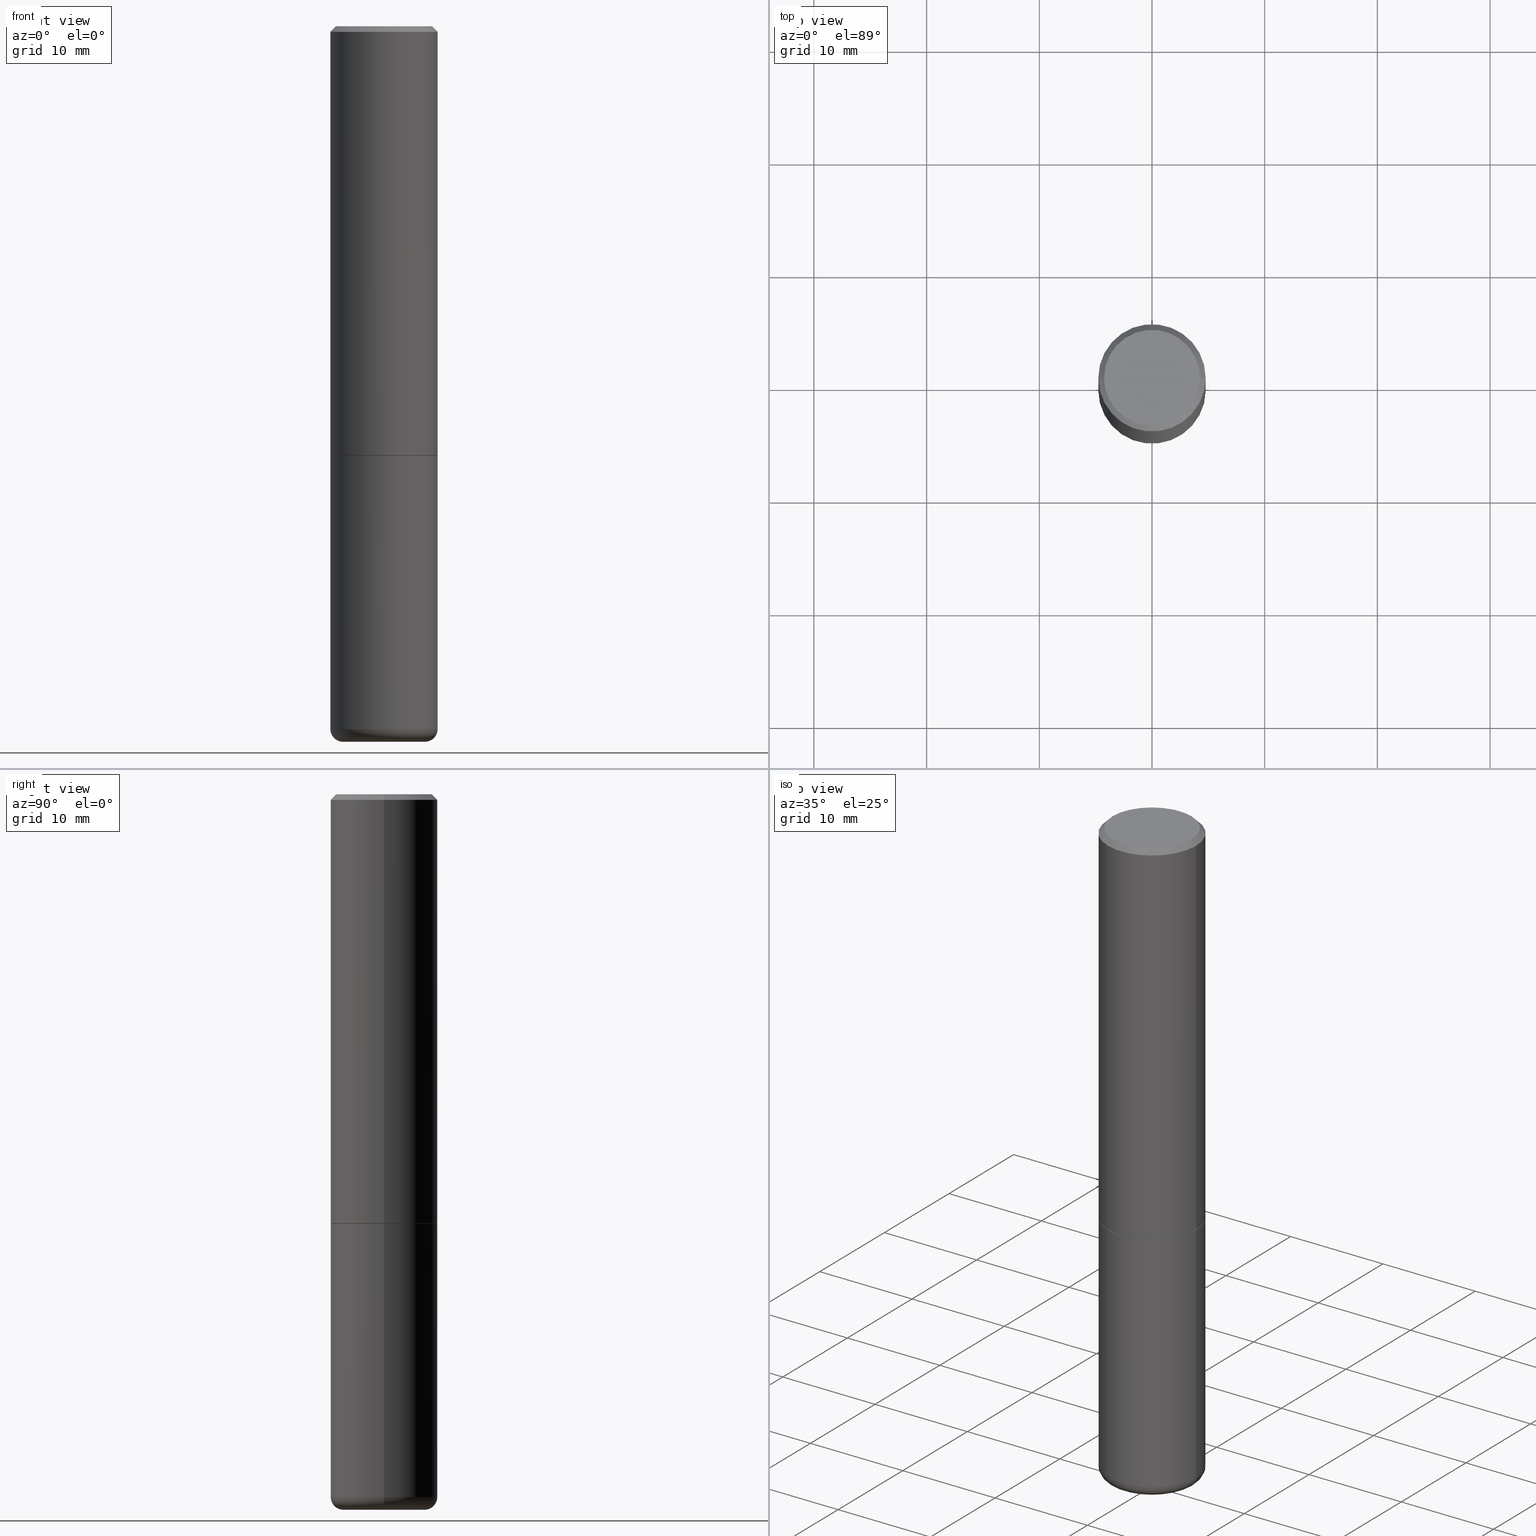
[diagram: canonical four-view strip — front | top / right | iso, engineering-drawing reading convention]
A machine part, canonical four-view strip (front | top / right | iso — engineering-drawing reading convention). The complete STEP part file that produces these views, byte-faithful:
ISO-10303-21;
HEADER;
FILE_DESCRIPTION (( 'STEP AP203' ),
    '1' );
FILE_NAME ('38173.STEP',
    '2023-03-22T20:28:51',
    ( '' ),
    ( '' ),
    'SwSTEP 2.0',
    'SolidWorks 2022',
    '' );
FILE_SCHEMA (( 'CONFIG_CONTROL_DESIGN' ));
ENDSEC;

DATA;
#1 = DIRECTION ( 'NONE',  ( -1.000000000000000000, 7.105427357600993970E-15, 0.000000000000000000 ) ) ;
#2 = ORIENTED_EDGE ( 'NONE', *, *, #335, .F. ) ;
#3 = CC_DESIGN_PERSON_AND_ORGANIZATION_ASSIGNMENT ( #252, #396, ( #260 ) ) ;
#4 = DATE_TIME_ROLE ( 'classification_date' ) ;
#5 = CARTESIAN_POINT ( 'NONE',  ( -0.1875000000000000278, -5.572244379473308339E-15, -1.500000000000000222 ) ) ;
#6 = ORIENTED_EDGE ( 'NONE', *, *, #272, .F. ) ;
#7 = APPROVAL_DATE_TIME ( #69, #218 ) ;
#8 = EDGE_CURVE ( 'NONE', #34, #312, #78, .T. ) ;
#9 = ORIENTED_EDGE ( 'NONE', *, *, #114, .F. ) ;
#10 = CARTESIAN_POINT ( 'NONE',  ( 0.1425000000000000433, -9.566874191352565154E-15, -2.455061670936044660 ) ) ;
#11 = VECTOR ( 'NONE', #253, 39.37007874015748143 ) ;
#12 = CARTESIAN_POINT ( 'NONE',  ( -0.1874999999999998890, 1.332267629550187060E-15, -9.223003294227942385E-30 ) ) ;
#13 = CC_DESIGN_PERSON_AND_ORGANIZATION_ASSIGNMENT ( #359, #61, ( #388 ) ) ;
#14 = CARTESIAN_POINT ( 'NONE',  ( -0.1874999999999998057, 1.239475875289310527E-15, -0.02000000000000003164 ) ) ;
#15 = DIRECTION ( 'NONE',  ( 2.445468806185136597E-29, -3.491481338843145583E-15, -1.000000000000000000 ) ) ;
#16 = COORDINATED_UNIVERSAL_TIME_OFFSET ( 5, 0, .BEHIND. ) ;
#17 = DIRECTION ( 'NONE',  ( 2.445468806185136597E-29, -3.491481338843145583E-15, -1.000000000000000000 ) ) ;
#18 = VECTOR ( 'NONE', #322, 39.37007874015748143 ) ;
#19 = AXIS2_PLACEMENT_3D ( 'NONE', #331, #108, #333 ) ;
#20 = CARTESIAN_POINT ( 'NONE',  ( 3.668203209277706016E-29, -5.237222008264719754E-15, -1.500000000000000444 ) ) ;
#21 = PRODUCT_DEFINITION_SHAPE ( 'NONE', 'NONE',  #372 ) ;
#22 = CARTESIAN_POINT ( 'NONE',  ( -0.1874999999999997502, -5.572244379473309128E-15, -2.455061670936044660 ) ) ;
#23 = LINE ( 'NONE', #12, #230 ) ;
#24 = DIRECTION ( 'NONE',  ( -1.000000000000000000, 6.982962677686266711E-15, 0.000000000000000000 ) ) ;
#25 = LINE ( 'NONE', #426, #254 ) ;
#26 = CYLINDRICAL_SURFACE ( 'NONE', #326, 0.1874999999999999167 ) ;
#27 = CIRCLE ( 'NONE', #183, 0.04499999999999970690 ) ;
#28 =( NAMED_UNIT ( * ) PLANE_ANGLE_UNIT ( ) SI_UNIT ( $, .RADIAN. ) );
#29 = CARTESIAN_POINT ( 'NONE',  ( -0.1874999999999999722, -1.319512447301180399E-15, -1.499000000000000110 ) ) ;
#30 = CARTESIAN_POINT ( 'NONE',  ( 0.000000000000000000, 0.000000000000000000, 0.000000000000000000 ) ) ;
#31 = MANIFOLD_SOLID_BREP ( 'Body-Move/Copy2[2]', #104 ) ;
#32 = AXIS2_PLACEMENT_3D ( 'NONE', #383, #124, #88 ) ;
#33 = ORIENTED_EDGE ( 'NONE', *, *, #215, .F. ) ;
#34 = VERTEX_POINT ( 'NONE', #149 ) ;
#35 = CYLINDRICAL_SURFACE ( 'NONE', #191, 0.1874999999999998890 ) ;
#36 = VERTEX_POINT ( 'NONE', #344 ) ;
#37 = ORIENTED_EDGE ( 'NONE', *, *, #215, .T. ) ;
#38 = AXIS2_PLACEMENT_3D ( 'NONE', #55, #222, #250 ) ;
#39 = LOCAL_TIME ( 16, 28, 51.00000000000000000, #273 ) ;
#40 = EDGE_LOOP ( 'NONE', ( #301, #304 ) ) ;
#41 = VERTEX_POINT ( 'NONE', #175 ) ;
#42 = CARTESIAN_POINT ( 'NONE',  ( -0.1425000000000000433, -7.559278611324128563E-15, -2.455061670936044660 ) ) ;
#43 = VERTEX_POINT ( 'NONE', #5 ) ;
#44 = ORIENTED_EDGE ( 'NONE', *, *, #436, .F. ) ;
#45 = CARTESIAN_POINT ( 'NONE',  ( 3.668203209277706016E-29, -5.237222008264719754E-15, -1.500000000000000444 ) ) ;
#46 = DIRECTION ( 'NONE',  ( -2.445468806185136597E-29, 3.491481338843145583E-15, 1.000000000000000000 ) ) ;
#47 = ADVANCED_FACE ( 'NONE', ( #275 ), #429, .T. ) ;
#48 = PERSON_AND_ORGANIZATION ( #178, #299 ) ;
#49 = AXIS2_PLACEMENT_3D ( 'NONE', #54, #187, #24 ) ;
#50 = EDGE_CURVE ( 'NONE', #303, #342, #356, .T. ) ;
#51 = APPROVAL_PERSON_ORGANIZATION ( #427, #424, #223 ) ;
#52 = DIRECTION ( 'NONE',  ( -1.000000000000000000, 6.982962677686265922E-15, -4.876176775795935793E-29 ) ) ;
#53 = ORIENTED_EDGE ( 'NONE', *, *, #95, .F. ) ;
#54 = CARTESIAN_POINT ( 'NONE',  ( 4.890937612370280165E-31, -6.982962677686301470E-17, -0.02000000000000003164 ) ) ;
#55 = CARTESIAN_POINT ( 'NONE',  ( 3.668203209277706016E-29, -5.237222008264719754E-15, -1.500000000000000444 ) ) ;
#56 = AXIS2_PLACEMENT_3D ( 'NONE', #267, #83, #408 ) ;
#57 =( GEOMETRIC_REPRESENTATION_CONTEXT ( 3 ) GLOBAL_UNCERTAINTY_ASSIGNED_CONTEXT ( ( #300 ) ) GLOBAL_UNIT_ASSIGNED_CONTEXT ( ( #259, #28, #365 ) ) REPRESENTATION_CONTEXT ( 'NONE', 'WORKASPACE' ) );
#58 = LINE ( 'NONE', #14, #18 ) ;
#59 = ADVANCED_FACE ( 'NONE', ( #284 ), #323, .F. ) ;
#60 = EDGE_CURVE ( 'NONE', #146, #440, #140, .T. ) ;
#61 = PERSON_AND_ORGANIZATION_ROLE ( 'design_owner' ) ;
#62 = PRODUCT_RELATED_PRODUCT_CATEGORY ( 'detail', '', ( #388 ) ) ;
#63 = DIRECTION ( 'NONE',  ( 1.000000000000000000, -6.982962677686266711E-15, 0.000000000000000000 ) ) ;
#64 = EDGE_CURVE ( 'NONE', #85, #440, #287, .T. ) ;
#65 = APPROVAL ( #378, 'UNSPECIFIED' ) ;
#66 = CIRCLE ( 'NONE', #435, 0.1864999999999999714 ) ;
#67 = AXIS2_PLACEMENT_3D ( 'NONE', #186, #320, #156 ) ;
#68 = CC_DESIGN_APPROVAL ( #65, ( #372 ) ) ;
#69 = DATE_AND_TIME ( #207, #39 ) ;
#70 = ORIENTED_EDGE ( 'NONE', *, *, #158, .T. ) ;
#71 = FACE_OUTER_BOUND ( 'NONE', #210, .T. ) ;
#72 = VERTEX_POINT ( 'NONE', #328 ) ;
#73 = EDGE_LOOP ( 'NONE', ( #79, #205, #345, #2 ) ) ;
#74 = APPROVAL_ROLE ( '' ) ;
#75 = ADVANCED_FACE ( 'NONE', ( #251 ), #305, .F. ) ;
#76 = DIRECTION ( 'NONE',  ( 7.105427357601001859E-15, 1.000000000000000000, -3.491481338843145583E-15 ) ) ;
#77 = ORIENTED_EDGE ( 'NONE', *, *, #60, .T. ) ;
#78 = CIRCLE ( 'NONE', #324, 0.1674999999999998157 ) ;
#79 = ORIENTED_EDGE ( 'NONE', *, *, #143, .T. ) ;
#80 = AXIS2_PLACEMENT_3D ( 'NONE', #316, #352, #281 ) ;
#81 = VECTOR ( 'NONE', #263, 39.37007874015748143 ) ;
#82 = DATE_AND_TIME ( #384, #420 ) ;
#83 = DIRECTION ( 'NONE',  ( -2.445468806185136597E-29, 3.491481338843145583E-15, 1.000000000000000000 ) ) ;
#84 = ORIENTED_EDGE ( 'NONE', *, *, #239, .T. ) ;
#85 = VERTEX_POINT ( 'NONE', #129 ) ;
#86 = FACE_OUTER_BOUND ( 'NONE', #151, .T. ) ;
#87 = EDGE_CURVE ( 'NONE', #34, #41, #58, .T. ) ;
#88 = DIRECTION ( 'NONE',  ( 1.000000000000000000, -6.982962677686269077E-15, 0.000000000000000000 ) ) ;
#89 = DIRECTION ( 'NONE',  ( -2.445468806185136597E-29, 3.491481338843145583E-15, 1.000000000000000000 ) ) ;
#90 = DIRECTION ( 'NONE',  ( 1.000000000000000000, -6.982962677686269077E-15, 0.000000000000000000 ) ) ;
#91 = DIRECTION ( 'NONE',  ( -2.445468806185136597E-29, 3.491481338843145583E-15, 1.000000000000000000 ) ) ;
#92 = AXIS2_PLACEMENT_3D ( 'NONE', #148, #270, #410 ) ;
#93 = CARTESIAN_POINT ( 'NONE',  ( 6.113672015462842613E-29, -8.728703347107864943E-15, -2.500000000000000000 ) ) ;
#94 = DIRECTION ( 'NONE',  ( -2.445468806185136597E-29, 3.491481338843145583E-15, 1.000000000000000000 ) ) ;
#95 = EDGE_CURVE ( 'NONE', #85, #308, #234, .T. ) ;
#96 = FACE_OUTER_BOUND ( 'NONE', #382, .T. ) ;
#97 = DIRECTION ( 'NONE',  ( -2.445468806185136597E-29, 3.491481338843145583E-15, 1.000000000000000000 ) ) ;
#98 = CIRCLE ( 'NONE', #154, 0.1874999999999998057 ) ;
#99 = DIRECTION ( 'NONE',  ( -2.445468806185136597E-29, 3.491481338843145583E-15, 1.000000000000000000 ) ) ;
#100 = EDGE_CURVE ( 'NONE', #243, #43, #23, .T. ) ;
#101 = CYLINDRICAL_SURFACE ( 'NONE', #220, 0.1874999999999999167 ) ;
#102 = SECURITY_CLASSIFICATION_LEVEL ( 'unclassified' ) ;
#103 = ADVANCED_FACE ( 'NONE', ( #96 ), #119, .T. ) ;
#104 = CLOSED_SHELL ( 'NONE', ( #394, #199, #367, #162, #325, #135, #109, #137 ) ) ;
#105 = CARTESIAN_POINT ( 'NONE',  ( -0.1874999999999999167, 1.332267629550187257E-15, -9.223003294227943787E-30 ) ) ;
#106 = AXIS2_PLACEMENT_3D ( 'NONE', #192, #421, #52 ) ;
#107 = AXIS2_PLACEMENT_3D ( 'NONE', #348, #46, #185 ) ;
#108 = DIRECTION ( 'NONE',  ( -2.445468806185136597E-29, 3.491481338843145583E-15, 1.000000000000000000 ) ) ;
#109 = ADVANCED_FACE ( 'NONE', ( #227 ), #288, .F. ) ;
#110 = AXIS2_PLACEMENT_3D ( 'NONE', #442, #409, #201 ) ;
#111 = ORIENTED_EDGE ( 'NONE', *, *, #169, .T. ) ;
#112 = LINE ( 'NONE', #274, #240 ) ;
#113 = ORIENTED_EDGE ( 'NONE', *, *, #436, .T. ) ;
#114 = EDGE_CURVE ( 'NONE', #312, #36, #224, .T. ) ;
#115 = ORIENTED_EDGE ( 'NONE', *, *, #8, .F. ) ;
#116 = EDGE_LOOP ( 'NONE', ( #208, #264, #6, #403 ) ) ;
#117 = EDGE_LOOP ( 'NONE', ( #170, #113 ) ) ;
#118 = EDGE_LOOP ( 'NONE', ( #77, #111, #122, #241 ) ) ;
#119 = TOROIDAL_SURFACE ( 'NONE', #277, 0.1425000000000000433, 0.04499999999999970690 ) ;
#120 = APPROVAL_PERSON_ORGANIZATION ( #48, #65, #319 ) ;
#121 = ORIENTED_EDGE ( 'NONE', *, *, #169, .F. ) ;
#122 = ORIENTED_EDGE ( 'NONE', *, *, #206, .F. ) ;
#123 = DIRECTION ( 'NONE',  ( 1.000000000000000000, -6.982962677686269077E-15, 0.000000000000000000 ) ) ;
#124 = DIRECTION ( 'NONE',  ( -2.445468806185136597E-29, 3.491481338843145583E-15, 1.000000000000000000 ) ) ;
#125 = DIRECTION ( 'NONE',  ( 1.000000000000000000, -6.982962677686264344E-15, 0.000000000000000000 ) ) ;
#126 = ORIENTED_EDGE ( 'NONE', *, *, #64, .F. ) ;
#127 = PERSON_AND_ORGANIZATION_ROLE ( 'creator' ) ;
#128 = APPROVAL_PERSON_ORGANIZATION ( #269, #218, #74 ) ;
#129 = CARTESIAN_POINT ( 'NONE',  ( -0.1864999999999999714, -3.906761351723910512E-15, -1.500000000000000444 ) ) ;
#130 = CARTESIAN_POINT ( 'NONE',  ( -0.1864999999999999714, -3.912059806072132914E-15, -1.500000000000000444 ) ) ;
#131 = CARTESIAN_POINT ( 'NONE',  ( 3.668203209277704895E-29, -5.237222008264718177E-15, -1.500000000000000222 ) ) ;
#132 = CARTESIAN_POINT ( 'NONE',  ( 3.668203209277706016E-29, -5.237222008264719754E-15, -1.500000000000000444 ) ) ;
#133 = DATE_AND_TIME ( #283, #386 ) ;
#134 = CONICAL_SURFACE ( 'NONE', #190, 0.1864999999999999714, 0.7853981633972946241 ) ;
#135 = ADVANCED_FACE ( 'NONE', ( #86 ), #134, .T. ) ;
#136 = CC_DESIGN_APPROVAL ( #424, ( #260 ) ) ;
#137 = ADVANCED_FACE ( 'NONE', ( #354 ), #416, .F. ) ;
#138 = CARTESIAN_POINT ( 'NONE',  ( 0.1864999999999999714, -6.539544547653208748E-15, -1.500000000000000444 ) ) ;
#139 = CARTESIAN_POINT ( 'NONE',  ( 6.003776733534855624E-29, -8.571802009782271832E-15, -2.455061670936044660 ) ) ;
#140 = CIRCLE ( 'NONE', #67, 0.1875000000000000278 ) ;
#141 = DIRECTION ( 'NONE',  ( -2.445468806185136597E-29, 3.491481338843145583E-15, 1.000000000000000000 ) ) ;
#142 = EDGE_LOOP ( 'NONE', ( #121, #381, #278, #374 ) ) ;
#143 = EDGE_CURVE ( 'NONE', #308, #85, #66, .T. ) ;
#144 = CONICAL_SURFACE ( 'NONE', #385, 751.2258538476709191, 1.518436449235073926 ) ;
#145 = ORIENTED_EDGE ( 'NONE', *, *, #143, .F. ) ;
#146 = VERTEX_POINT ( 'NONE', #245 ) ;
#147 = DATE_AND_TIME ( #235, #357 ) ;
#148 = CARTESIAN_POINT ( 'NONE',  ( 4.890937612370280165E-31, -6.982962677686301470E-17, -0.02000000000000003164 ) ) ;
#149 = CARTESIAN_POINT ( 'NONE',  ( -0.1674999999999998157, 1.204561061900879272E-15, -8.301862719484101980E-30 ) ) ;
#150 = ORIENTED_EDGE ( 'NONE', *, *, #272, .T. ) ;
#151 = EDGE_LOOP ( 'NONE', ( #126, #176, #307, #265 ) ) ;
#152 = CC_DESIGN_PERSON_AND_ORGANIZATION_ASSIGNMENT ( #329, #127, ( #372 ) ) ;
#153 = ORIENTED_EDGE ( 'NONE', *, *, #100, .T. ) ;
#154 = AXIS2_PLACEMENT_3D ( 'NONE', #226, #349, #266 ) ;
#155 = DIRECTION ( 'NONE',  ( -2.445468806185136597E-29, 3.491481338843145583E-15, 1.000000000000000000 ) ) ;
#156 = DIRECTION ( 'NONE',  ( 1.000000000000000000, -6.982962677686266711E-15, 0.000000000000000000 ) ) ;
#157 = DIRECTION ( 'NONE',  ( -1.000000000000000000, 6.982962677686265922E-15, 0.000000000000000000 ) ) ;
#158 = EDGE_CURVE ( 'NONE', #342, #303, #163, .T. ) ;
#159 = DIRECTION ( 'NONE',  ( 0.000000000000000000, 0.000000000000000000, 1.000000000000000000 ) ) ;
#160 = DIRECTION ( 'NONE',  ( -2.445468806185136597E-29, 3.491481338843145583E-15, 1.000000000000000000 ) ) ;
#161 = DIRECTION ( 'NONE',  ( 1.000000000000000000, -6.982962677686264344E-15, 0.000000000000000000 ) ) ;
#162 = ADVANCED_FACE ( 'NONE', ( #387 ), #336, .T. ) ;
#163 = CIRCLE ( 'NONE', #166, 0.1401448819690678804 ) ;
#164 = APPROVAL_DATE_TIME ( #133, #424 ) ;
#165 = EDGE_CURVE ( 'NONE', #243, #72, #405, .T. ) ;
#166 = AXIS2_PLACEMENT_3D ( 'NONE', #219, #248, #125 ) ;
#167 = CC_DESIGN_APPROVAL ( #218, ( #327 ) ) ;
#168 = ORIENTED_EDGE ( 'NONE', *, *, #158, .F. ) ;
#169 = EDGE_CURVE ( 'NONE', #440, #41, #200, .T. ) ;
#170 = ORIENTED_EDGE ( 'NONE', *, *, #256, .T. ) ;
#171 = ORIENTED_EDGE ( 'NONE', *, *, #433, .F. ) ;
#172 = DIRECTION ( 'NONE',  ( 1.000000000000000000, -6.982962677686265922E-15, 4.876176775795935793E-29 ) ) ;
#173 = AXIS2_PLACEMENT_3D ( 'NONE', #228, #99, #290 ) ;
#174 = EDGE_LOOP ( 'NONE', ( #9, #115, #289, #414 ) ) ;
#175 = CARTESIAN_POINT ( 'NONE',  ( -0.1874999999999998057, 1.239475875289310527E-15, -0.02000000000000003164 ) ) ;
#176 = ORIENTED_EDGE ( 'NONE', *, *, #95, .T. ) ;
#177 = PERSON_AND_ORGANIZATION_ROLE ( 'classification_officer' ) ;
#178 = PERSON ( 'UNSPECIFIED', 'UNSPECIFIED', 'UNSPECIFIED', ('UNSPECIFIED'), ('UNSPECIFIED'), ('UNSPECIFIED') ) ;
#179 = ORIENTED_EDGE ( 'NONE', *, *, #256, .F. ) ;
#180 = VERTEX_POINT ( 'NONE', #361 ) ;
#181 = CARTESIAN_POINT ( 'NONE',  ( 0.000000000000000000, 0.000000000000000000, 0.000000000000000000 ) ) ;
#182 = DIRECTION ( 'NONE',  ( -0.7071067811864388819, 7.493145998869961307E-15, 0.7071067811866561525 ) ) ;
#183 = AXIS2_PLACEMENT_3D ( 'NONE', #42, #76, #1 ) ;
#184 = ORIENTED_EDGE ( 'NONE', *, *, #50, .F. ) ;
#185 = DIRECTION ( 'NONE',  ( 1.000000000000000000, -6.982962677686266711E-15, 0.000000000000000000 ) ) ;
#186 = CARTESIAN_POINT ( 'NONE',  ( 3.665757740471519853E-29, -5.233730526925875958E-15, -1.499000000000000110 ) ) ;
#187 = DIRECTION ( 'NONE',  ( 2.445468806185136597E-29, -3.491481338843145583E-15, -1.000000000000000000 ) ) ;
#188 = CARTESIAN_POINT ( 'NONE',  ( 0.1874999999999998057, -1.356173001359023888E-15, -0.02000000000000003164 ) ) ;
#189 = ADVANCED_BREP_SHAPE_REPRESENTATION ( '38173', ( #315, #31, #407 ), #57 ) ;
#190 = AXIS2_PLACEMENT_3D ( 'NONE', #45, #155, #90 ) ;
#191 = AXIS2_PLACEMENT_3D ( 'NONE', #181, #91, #314 ) ;
#192 = CARTESIAN_POINT ( 'NONE',  ( 1.309305502066211690E-15, 0.1874999999999947820, -1.500000000000000666 ) ) ;
#193 = PERSON_AND_ORGANIZATION ( #178, #299 ) ;
#194 = APPLICATION_PROTOCOL_DEFINITION ( 'international standard', 'config_control_design', 1994, #377 ) ;
#195 = PERSON_AND_ORGANIZATION_ROLE ( 'design_supplier' ) ;
#196 = CARTESIAN_POINT ( 'NONE',  ( 6.003776733534855624E-29, -8.571802009782271832E-15, -2.455061670936044660 ) ) ;
#197 = APPROVAL_DATE_TIME ( #82, #65 ) ;
#198 = AXIS2_PLACEMENT_3D ( 'NONE', #392, #17, #157 ) ;
#199 = ADVANCED_FACE ( 'NONE', ( #366 ), #26, .T. ) ;
#200 = LINE ( 'NONE', #105, #298 ) ;
#201 = DIRECTION ( 'NONE',  ( 1.000000000000000000, -6.982962677686266711E-15, 4.876176775795936914E-29 ) ) ;
#202 = CC_DESIGN_DATE_AND_TIME_ASSIGNMENT ( #147, #4, ( #327 ) ) ;
#203 = AXIS2_PLACEMENT_3D ( 'NONE', #196, #97, #430 ) ;
#204 = FACE_OUTER_BOUND ( 'NONE', #313, .T. ) ;
#205 = ORIENTED_EDGE ( 'NONE', *, *, #64, .T. ) ;
#206 = EDGE_CURVE ( 'NONE', #36, #41, #98, .T. ) ;
#207 = CALENDAR_DATE ( 2023, 22, 3 ) ;
#208 = ORIENTED_EDGE ( 'NONE', *, *, #50, .T. ) ;
#209 = CARTESIAN_POINT ( 'NONE',  ( 1.023740102807458112E-27, -1.461629547568640162E-13, -41.86273405811559911 ) ) ;
#210 = EDGE_LOOP ( 'NONE', ( #150, #153, #179, #310 ) ) ;
#211 = SHAPE_DEFINITION_REPRESENTATION ( #21, #189 ) ;
#212 = ORIENTED_EDGE ( 'NONE', *, *, #100, .F. ) ;
#213 = CIRCLE ( 'NONE', #232, 0.04499999999999970690 ) ;
#214 = EDGE_LOOP ( 'NONE', ( #145, #53 ) ) ;
#215 = EDGE_CURVE ( 'NONE', #437, #342, #406, .T. ) ;
#216 = ORIENTED_EDGE ( 'NONE', *, *, #165, .F. ) ;
#217 = DIRECTION ( 'NONE',  ( -2.445468806185136597E-29, 3.491481338843145583E-15, 1.000000000000000000 ) ) ;
#218 = APPROVAL ( #375, 'UNSPECIFIED' ) ;
#219 = CARTESIAN_POINT ( 'NONE',  ( 6.113672015462842613E-29, -8.728703347107864943E-15, -2.500000000000000000 ) ) ;
#220 = AXIS2_PLACEMENT_3D ( 'NONE', #363, #141, #172 ) ;
#221 = LOCAL_TIME ( 16, 28, 51.00000000000000000, #422 ) ;
#222 = DIRECTION ( 'NONE',  ( -2.445468806185136597E-29, 3.491481338843145583E-15, 1.000000000000000000 ) ) ;
#223 = APPROVAL_ROLE ( '' ) ;
#224 = LINE ( 'NONE', #188, #11 ) ;
#225 = DIRECTION ( 'NONE',  ( 1.000000000000000000, 0.000000000000000000, 0.000000000000000000 ) ) ;
#226 = CARTESIAN_POINT ( 'NONE',  ( 4.890937612370280165E-31, -6.982962677686301470E-17, -0.02000000000000003164 ) ) ;
#227 = FACE_OUTER_BOUND ( 'NONE', #214, .T. ) ;
#228 = CARTESIAN_POINT ( 'NONE',  ( 3.665757740471519853E-29, -5.233730526925875958E-15, -1.499000000000000110 ) ) ;
#229 = CALENDAR_DATE ( 2023, 22, 3 ) ;
#230 = VECTOR ( 'NONE', #282, 39.37007874015748143 ) ;
#231 = DIRECTION ( 'NONE',  ( -2.445468806185136877E-29, 3.491481338843145188E-15, 1.000000000000000000 ) ) ;
#232 = AXIS2_PLACEMENT_3D ( 'NONE', #10, #279, #415 ) ;
#233 = EDGE_CURVE ( 'NONE', #312, #34, #400, .T. ) ;
#234 = CIRCLE ( 'NONE', #38, 0.1864999999999999714 ) ;
#235 = CALENDAR_DATE ( 2023, 22, 3 ) ;
#236 = LENGTH_MEASURE_WITH_UNIT ( LENGTH_MEASURE( 0.02539999999999999897 ), #434 );
#237 = DIRECTION ( 'NONE',  ( 0.7071067811864388819, -2.468850131081119129E-15, 0.7071067811866561525 ) ) ;
#238 = ORIENTED_EDGE ( 'NONE', *, *, #404, .T. ) ;
#239 = EDGE_CURVE ( 'NONE', #72, #180, #297, .T. ) ;
#240 = VECTOR ( 'NONE', #237, 39.37007874015748143 ) ;
#241 = ORIENTED_EDGE ( 'NONE', *, *, #296, .F. ) ;
#242 = DIMENSIONAL_EXPONENTS ( 1.000000000000000000, 0.000000000000000000, 0.000000000000000000, 0.000000000000000000, 0.000000000000000000, 0.000000000000000000, 0.000000000000000000 ) ;
#243 = VERTEX_POINT ( 'NONE', #22 ) ;
#244 = FACE_OUTER_BOUND ( 'NONE', #73, .T. ) ;
#245 = CARTESIAN_POINT ( 'NONE',  ( 0.1875000000000000278, -6.543036028992050967E-15, -1.499000000000000110 ) ) ;
#246 = DIRECTION ( 'NONE',  ( -1.000000000000000000, 6.982962677686265922E-15, 0.000000000000000000 ) ) ;
#247 = COORDINATED_UNIVERSAL_TIME_OFFSET ( 5, 0, .BEHIND. ) ;
#248 = DIRECTION ( 'NONE',  ( -2.445468806185136597E-29, 3.491481338843145583E-15, 1.000000000000000000 ) ) ;
#249 = CIRCLE ( 'NONE', #173, 0.1875000000000000278 ) ;
#250 = DIRECTION ( 'NONE',  ( 1.000000000000000000, -6.982962677686269077E-15, 0.000000000000000000 ) ) ;
#251 = FACE_OUTER_BOUND ( 'NONE', #411, .T. ) ;
#252 = PERSON_AND_ORGANIZATION ( #178, #299 ) ;
#253 = DIRECTION ( 'NONE',  ( 0.7071067811865469066, -7.319954787623254468E-15, -0.7071067811865482389 ) ) ;
#254 = VECTOR ( 'NONE', #360, 39.37007874015748143 ) ;
#255 = CARTESIAN_POINT ( 'NONE',  ( 0.1674999999999998157, -1.252653207992877105E-15, 8.469775550109232378E-30 ) ) ;
#256 = EDGE_CURVE ( 'NONE', #180, #43, #379, .T. ) ;
#257 = CLOSED_SHELL ( 'NONE', ( #389, #47, #334, #59, #402, #103, #75 ) ) ;
#258 = AXIS2_PLACEMENT_3D ( 'NONE', #132, #425, #391 ) ;
#259 =( CONVERSION_BASED_UNIT ( 'INCH', #236 ) LENGTH_UNIT ( ) NAMED_UNIT ( #242 ) );
#260 = PRODUCT_DEFINITION_FORMATION_WITH_SPECIFIED_SOURCE ( 'ANY', '', #388, .NOT_KNOWN. ) ;
#261 = CARTESIAN_POINT ( 'NONE',  ( 8.110391114063191484E-19, -8.703059526818897836E-15, -2.492655317958118566 ) ) ;
#262 = CC_DESIGN_DATE_AND_TIME_ASSIGNMENT ( #358, #291, ( #372 ) ) ;
#263 = DIRECTION ( 'NONE',  ( 0.9986295347545742773, -7.033825938271997912E-15, -0.05233595624293664594 ) ) ;
#264 = ORIENTED_EDGE ( 'NONE', *, *, #353, .T. ) ;
#265 = ORIENTED_EDGE ( 'NONE', *, *, #280, .F. ) ;
#266 = DIRECTION ( 'NONE',  ( 1.000000000000000000, -6.982962677686266711E-15, 0.000000000000000000 ) ) ;
#267 = CARTESIAN_POINT ( 'NONE',  ( 0.000000000000000000, 0.000000000000000000, 0.000000000000000000 ) ) ;
#268 = DIRECTION ( 'NONE',  ( -2.445468806185136597E-29, 3.491481338843145583E-15, 1.000000000000000000 ) ) ;
#269 = PERSON_AND_ORGANIZATION ( #178, #299 ) ;
#270 = DIRECTION ( 'NONE',  ( 2.445468806185136597E-29, -3.491481338843145583E-15, -1.000000000000000000 ) ) ;
#271 = ORIENTED_EDGE ( 'NONE', *, *, #206, .T. ) ;
#272 = EDGE_CURVE ( 'NONE', #72, #243, #364, .T. ) ;
#273 = COORDINATED_UNIVERSAL_TIME_OFFSET ( 5, 0, .BEHIND. ) ;
#274 = CARTESIAN_POINT ( 'NONE',  ( 0.1864999999999999714, -6.539544547653208748E-15, -1.500000000000000444 ) ) ;
#275 = FACE_OUTER_BOUND ( 'NONE', #116, .T. ) ;
#276 = EDGE_LOOP ( 'NONE', ( #212, #370, #84, #44 ) ) ;
#277 = AXIS2_PLACEMENT_3D ( 'NONE', #347, #94, #355 ) ;
#278 = ORIENTED_EDGE ( 'NONE', *, *, #296, .T. ) ;
#279 = DIRECTION ( 'NONE',  ( -6.982962677686266711E-15, -1.000000000000000000, 3.491481338843145583E-15 ) ) ;
#280 = EDGE_CURVE ( 'NONE', #440, #146, #249, .T. ) ;
#281 = DIRECTION ( 'NONE',  ( -1.000000000000000000, 6.982962677686265922E-15, -4.876176775795935793E-29 ) ) ;
#282 = DIRECTION ( 'NONE',  ( -2.445468806185136877E-29, 3.491481338843145188E-15, 1.000000000000000000 ) ) ;
#283 = CALENDAR_DATE ( 2023, 22, 3 ) ;
#284 = FACE_OUTER_BOUND ( 'NONE', #117, .T. ) ;
#285 = CONICAL_SURFACE ( 'NONE', #32, 0.1864999999999999714, 0.7853981633972946241 ) ;
#286 = CIRCLE ( 'NONE', #107, 0.1874999999999998057 ) ;
#287 = LINE ( 'NONE', #130, #412 ) ;
#288 = PLANE ( 'NONE',  #258 ) ;
#289 = ORIENTED_EDGE ( 'NONE', *, *, #87, .T. ) ;
#290 = DIRECTION ( 'NONE',  ( 1.000000000000000000, -6.982962677686266711E-15, 0.000000000000000000 ) ) ;
#291 = DATE_TIME_ROLE ( 'creation_date' ) ;
#292 = CC_DESIGN_PERSON_AND_ORGANIZATION_ASSIGNMENT ( #193, #177, ( #327 ) ) ;
#293 = CARTESIAN_POINT ( 'NONE',  ( 0.1401448819690678804, -9.707329827366611843E-15, -2.500000000000000000 ) ) ;
#294 = VECTOR ( 'NONE', #339, 39.37007874015748143 ) ;
#295 = CARTESIAN_POINT ( 'NONE',  ( 0.000000000000000000, 0.000000000000000000, 0.000000000000000000 ) ) ;
#296 = EDGE_CURVE ( 'NONE', #146, #36, #25, .T. ) ;
#297 = LINE ( 'NONE', #401, #395 ) ;
#298 = VECTOR ( 'NONE', #231, 39.37007874015748143 ) ;
#299 = ORGANIZATION ( 'UNSPECIFIED', 'UNSPECIFIED', '' ) ;
#300 = UNCERTAINTY_MEASURE_WITH_UNIT (LENGTH_MEASURE( 1.000000000000000082E-05 ), #259, 'distance_accuracy_value', 'NONE');
#301 = ORIENTED_EDGE ( 'NONE', *, *, #8, .T. ) ;
#302 = CARTESIAN_POINT ( 'NONE',  ( 6.096277170222539406E-29, -8.702248487707553671E-15, -2.492655317958118566 ) ) ;
#303 = VERTEX_POINT ( 'NONE', #293 ) ;
#304 = ORIENTED_EDGE ( 'NONE', *, *, #233, .T. ) ;
#305 = CONICAL_SURFACE ( 'NONE', #198, 751.2258538476709191, 1.518436449235073926 ) ;
#306 = CIRCLE ( 'NONE', #19, 0.1875000000000000278 ) ;
#307 = ORIENTED_EDGE ( 'NONE', *, *, #335, .T. ) ;
#308 = VERTEX_POINT ( 'NONE', #138 ) ;
#309 = COORDINATED_UNIVERSAL_TIME_OFFSET ( 5, 0, .BEHIND. ) ;
#310 = ORIENTED_EDGE ( 'NONE', *, *, #239, .F. ) ;
#311 = EDGE_LOOP ( 'NONE', ( #33, #418, #168 ) ) ;
#312 = VERTEX_POINT ( 'NONE', #255 ) ;
#313 = EDGE_LOOP ( 'NONE', ( #346, #317, #271, #373 ) ) ;
#314 = DIRECTION ( 'NONE',  ( 1.000000000000000000, -6.982962677686265922E-15, 4.876176775795935793E-29 ) ) ;
#315 = MANIFOLD_SOLID_BREP ( 'Body-Move/Copy2[1]', #257 ) ;
#316 = CARTESIAN_POINT ( 'NONE',  ( 1.169646248512448412E-15, 0.1674999999999998157, -5.848231242562262767E-16 ) ) ;
#317 = ORIENTED_EDGE ( 'NONE', *, *, #114, .T. ) ;
#318 = LINE ( 'NONE', #261, #81 ) ;
#319 = APPROVAL_ROLE ( '' ) ;
#320 = DIRECTION ( 'NONE',  ( -2.445468806185136597E-29, 3.491481338843145583E-15, 1.000000000000000000 ) ) ;
#321 = APPLICATION_CONTEXT ( 'configuration controlled 3d designs of mechanical parts and assemblies' ) ;
#322 = DIRECTION ( 'NONE',  ( -0.7071067811865469066, 2.468850131082249961E-15, -0.7071067811865482389 ) ) ;
#323 = PLANE ( 'NONE',  #106 ) ;
#324 = AXIS2_PLACEMENT_3D ( 'NONE', #439, #268, #341 ) ;
#325 = ADVANCED_FACE ( 'NONE', ( #398 ), #101, .T. ) ;
#326 = AXIS2_PLACEMENT_3D ( 'NONE', #30, #89, #390 ) ;
#327 = SECURITY_CLASSIFICATION ( '', '', #102 ) ;
#328 = CARTESIAN_POINT ( 'NONE',  ( 0.1874999999999997502, -9.881107511848445263E-15, -2.455061670936044660 ) ) ;
#329 = PERSON_AND_ORGANIZATION ( #178, #299 ) ;
#330 = AXIS2_PLACEMENT_3D ( 'NONE', #139, #428, #397 ) ;
#331 = CARTESIAN_POINT ( 'NONE',  ( 3.668203209277704895E-29, -5.237222008264718177E-15, -1.500000000000000222 ) ) ;
#332 = DIRECTION ( 'NONE',  ( -2.445468806185136877E-29, 3.491481338843145188E-15, 1.000000000000000000 ) ) ;
#333 = DIRECTION ( 'NONE',  ( 1.000000000000000000, -6.982962677686266711E-15, 0.000000000000000000 ) ) ;
#334 = ADVANCED_FACE ( 'NONE', ( #71 ), #438, .T. ) ;
#335 = EDGE_CURVE ( 'NONE', #308, #146, #112, .T. ) ;
#336 = CONICAL_SURFACE ( 'NONE', #49, 0.1874999999999998057, 0.7853981633974473908 ) ;
#337 = DESIGN_CONTEXT ( 'detailed design', #377, 'design' ) ;
#338 = ORIENTED_EDGE ( 'NONE', *, *, #353, .F. ) ;
#339 = DIRECTION ( 'NONE',  ( -0.9986295347545742773, 6.790662755453667677E-15, -0.05233595624293664594 ) ) ;
#340 = FACE_OUTER_BOUND ( 'NONE', #311, .T. ) ;
#341 = DIRECTION ( 'NONE',  ( 1.000000000000000000, -6.982962677686266711E-15, 4.876176775795936914E-29 ) ) ;
#342 = VERTEX_POINT ( 'NONE', #376 ) ;
#343 = AXIS2_PLACEMENT_3D ( 'NONE', #93, #217, #161 ) ;
#344 = CARTESIAN_POINT ( 'NONE',  ( 0.1874999999999998057, -1.356173001359023888E-15, -0.02000000000000003164 ) ) ;
#345 = ORIENTED_EDGE ( 'NONE', *, *, #60, .F. ) ;
#346 = ORIENTED_EDGE ( 'NONE', *, *, #233, .F. ) ;
#347 = CARTESIAN_POINT ( 'NONE',  ( 6.003776733534855624E-29, -8.571802009782271832E-15, -2.455061670936044660 ) ) ;
#348 = CARTESIAN_POINT ( 'NONE',  ( 4.890937612370280165E-31, -6.982962677686301470E-17, -0.02000000000000003164 ) ) ;
#349 = DIRECTION ( 'NONE',  ( -2.445468806185136597E-29, 3.491481338843145583E-15, 1.000000000000000000 ) ) ;
#350 = DIRECTION ( 'NONE',  ( 1.000000000000000000, -6.982962677686267499E-15, 4.883557194083112901E-29 ) ) ;
#351 = FACE_OUTER_BOUND ( 'NONE', #276, .T. ) ;
#352 = DIRECTION ( 'NONE',  ( 2.438088387897960049E-29, -3.491481338843145188E-15, -1.000000000000000000 ) ) ;
#353 = EDGE_CURVE ( 'NONE', #342, #243, #27, .T. ) ;
#354 = FACE_OUTER_BOUND ( 'NONE', #40, .T. ) ;
#355 = DIRECTION ( 'NONE',  ( 1.000000000000000000, -6.982962677686267499E-15, 4.883557194083112901E-29 ) ) ;
#356 = CIRCLE ( 'NONE', #343, 0.1401448819690678804 ) ;
#357 = LOCAL_TIME ( 16, 28, 51.00000000000000000, #309 ) ;
#358 = DATE_AND_TIME ( #229, #221 ) ;
#359 = PERSON_AND_ORGANIZATION ( #178, #299 ) ;
#360 = DIRECTION ( 'NONE',  ( -2.445468806185136877E-29, 3.491481338843145188E-15, 1.000000000000000000 ) ) ;
#361 = CARTESIAN_POINT ( 'NONE',  ( 0.1875000000000000278, -6.546527510330893974E-15, -1.500000000000000222 ) ) ;
#362 = MECHANICAL_CONTEXT ( 'NONE', #321, 'mechanical' ) ;
#363 = CARTESIAN_POINT ( 'NONE',  ( 0.000000000000000000, 0.000000000000000000, 0.000000000000000000 ) ) ;
#364 = CIRCLE ( 'NONE', #203, 0.1874999999999997502 ) ;
#365 =( NAMED_UNIT ( * ) SI_UNIT ( $, .STERADIAN. ) SOLID_ANGLE_UNIT ( ) );
#366 = FACE_OUTER_BOUND ( 'NONE', #118, .T. ) ;
#367 = ADVANCED_FACE ( 'NONE', ( #204 ), #369, .T. ) ;
#368 = CC_DESIGN_PERSON_AND_ORGANIZATION_ASSIGNMENT ( #399, #195, ( #260 ) ) ;
#369 = CONICAL_SURFACE ( 'NONE', #92, 0.1874999999999998057, 0.7853981633974473908 ) ;
#370 = ORIENTED_EDGE ( 'NONE', *, *, #165, .T. ) ;
#371 = CARTESIAN_POINT ( 'NONE',  ( -8.110391112844049903E-19, -8.703059526818897836E-15, -2.492655317958118566 ) ) ;
#372 = PRODUCT_DEFINITION ( 'UNKNOWN', '', #260, #337 ) ;
#373 = ORIENTED_EDGE ( 'NONE', *, *, #87, .F. ) ;
#374 = ORIENTED_EDGE ( 'NONE', *, *, #413, .F. ) ;
#375 = APPROVAL_STATUS ( 'not_yet_approved' ) ;
#376 = CARTESIAN_POINT ( 'NONE',  ( -0.1401448819690679082, -7.486224224484587098E-15, -2.500000000000000000 ) ) ;
#377 = APPLICATION_CONTEXT ( 'configuration controlled 3d designs of mechanical parts and assemblies' ) ;
#378 = APPROVAL_STATUS ( 'not_yet_approved' ) ;
#379 = CIRCLE ( 'NONE', #441, 0.1875000000000000278 ) ;
#380 = CC_DESIGN_SECURITY_CLASSIFICATION ( #327, ( #260 ) ) ;
#381 = ORIENTED_EDGE ( 'NONE', *, *, #280, .T. ) ;
#382 = EDGE_LOOP ( 'NONE', ( #338, #70, #238, #216 ) ) ;
#383 = CARTESIAN_POINT ( 'NONE',  ( 3.668203209277706016E-29, -5.237222008264719754E-15, -1.500000000000000444 ) ) ;
#384 = CALENDAR_DATE ( 2023, 22, 3 ) ;
#385 = AXIS2_PLACEMENT_3D ( 'NONE', #209, #15, #246 ) ;
#386 = LOCAL_TIME ( 16, 28, 51.00000000000000000, #16 ) ;
#387 = FACE_OUTER_BOUND ( 'NONE', #174, .T. ) ;
#388 = PRODUCT ( '38173', '38173', '', ( #362 ) ) ;
#389 = ADVANCED_FACE ( 'NONE', ( #340 ), #144, .F. ) ;
#390 = DIRECTION ( 'NONE',  ( 1.000000000000000000, -6.982962677686265922E-15, 4.876176775795935793E-29 ) ) ;
#391 = DIRECTION ( 'NONE',  ( 1.000000000000000000, -6.982962677686265922E-15, 4.876176775795935793E-29 ) ) ;
#392 = CARTESIAN_POINT ( 'NONE',  ( 1.023740102807458112E-27, -1.461629547568640162E-13, -41.86273405811559911 ) ) ;
#393 = DIRECTION ( 'NONE',  ( -2.445468806185136597E-29, 3.491481338843145583E-15, 1.000000000000000000 ) ) ;
#394 = ADVANCED_FACE ( 'NONE', ( #244 ), #285, .T. ) ;
#395 = VECTOR ( 'NONE', #332, 39.37007874015748143 ) ;
#396 = PERSON_AND_ORGANIZATION_ROLE ( 'creator' ) ;
#397 = DIRECTION ( 'NONE',  ( 1.000000000000000000, -6.982962677686266711E-15, 0.000000000000000000 ) ) ;
#398 = FACE_OUTER_BOUND ( 'NONE', #142, .T. ) ;
#399 = PERSON_AND_ORGANIZATION ( #178, #299 ) ;
#400 = CIRCLE ( 'NONE', #110, 0.1674999999999998157 ) ;
#401 = CARTESIAN_POINT ( 'NONE',  ( 0.1874999999999998890, -1.309305502066174022E-15, 9.142831454617374006E-30 ) ) ;
#402 = ADVANCED_FACE ( 'NONE', ( #351 ), #35, .T. ) ;
#403 = ORIENTED_EDGE ( 'NONE', *, *, #404, .F. ) ;
#404 = EDGE_CURVE ( 'NONE', #303, #72, #213, .T. ) ;
#405 = CIRCLE ( 'NONE', #330, 0.1874999999999997502 ) ;
#406 = LINE ( 'NONE', #371, #294 ) ;
#407 = AXIS2_PLACEMENT_3D ( 'NONE', #295, #159, #225 ) ;
#408 = DIRECTION ( 'NONE',  ( 1.000000000000000000, -6.982962677686265922E-15, 4.876176775795935793E-29 ) ) ;
#409 = DIRECTION ( 'NONE',  ( -2.445468806185136597E-29, 3.491481338843145583E-15, 1.000000000000000000 ) ) ;
#410 = DIRECTION ( 'NONE',  ( -1.000000000000000000, 6.982962677686266711E-15, 0.000000000000000000 ) ) ;
#411 = EDGE_LOOP ( 'NONE', ( #171, #37, #184 ) ) ;
#412 = VECTOR ( 'NONE', #182, 39.37007874015748143 ) ;
#413 = EDGE_CURVE ( 'NONE', #41, #36, #286, .T. ) ;
#414 = ORIENTED_EDGE ( 'NONE', *, *, #413, .T. ) ;
#415 = DIRECTION ( 'NONE',  ( 1.000000000000000000, -6.982962677686269866E-15, 0.000000000000000000 ) ) ;
#416 = PLANE ( 'NONE',  #80 ) ;
#417 = DIRECTION ( 'NONE',  ( -2.445468806185136597E-29, 3.491481338843145583E-15, 1.000000000000000000 ) ) ;
#418 = ORIENTED_EDGE ( 'NONE', *, *, #433, .T. ) ;
#419 = AXIS2_PLACEMENT_3D ( 'NONE', #423, #417, #350 ) ;
#420 = LOCAL_TIME ( 16, 28, 51.00000000000000000, #247 ) ;
#421 = DIRECTION ( 'NONE',  ( 2.438088387897960049E-29, -3.491481338843145188E-15, -1.000000000000000000 ) ) ;
#422 = COORDINATED_UNIVERSAL_TIME_OFFSET ( 5, 0, .BEHIND. ) ;
#423 = CARTESIAN_POINT ( 'NONE',  ( 6.003776733534855624E-29, -8.571802009782271832E-15, -2.455061670936044660 ) ) ;
#424 = APPROVAL ( #431, 'UNSPECIFIED' ) ;
#425 = DIRECTION ( 'NONE',  ( -2.438088387897960049E-29, 3.491481338843145188E-15, 1.000000000000000000 ) ) ;
#426 = CARTESIAN_POINT ( 'NONE',  ( 0.1874999999999999167, -1.309305502066174219E-15, 9.142831454617375408E-30 ) ) ;
#427 = PERSON_AND_ORGANIZATION ( #178, #299 ) ;
#428 = DIRECTION ( 'NONE',  ( -2.445468806185136597E-29, 3.491481338843145583E-15, 1.000000000000000000 ) ) ;
#429 = TOROIDAL_SURFACE ( 'NONE', #419, 0.1425000000000000433, 0.04499999999999970690 ) ;
#430 = DIRECTION ( 'NONE',  ( 1.000000000000000000, -6.982962677686266711E-15, 0.000000000000000000 ) ) ;
#431 = APPROVAL_STATUS ( 'not_yet_approved' ) ;
#432 = APPLICATION_PROTOCOL_DEFINITION ( 'international standard', 'config_control_design', 1994, #321 ) ;
#433 = EDGE_CURVE ( 'NONE', #437, #303, #318, .T. ) ;
#434 =( LENGTH_UNIT ( ) NAMED_UNIT ( * ) SI_UNIT ( $, .METRE. ) );
#435 = AXIS2_PLACEMENT_3D ( 'NONE', #20, #160, #123 ) ;
#436 = EDGE_CURVE ( 'NONE', #43, #180, #306, .T. ) ;
#437 = VERTEX_POINT ( 'NONE', #302 ) ;
#438 = CYLINDRICAL_SURFACE ( 'NONE', #56, 0.1874999999999998890 ) ;
#439 = CARTESIAN_POINT ( 'NONE',  ( 0.000000000000000000, 0.000000000000000000, 0.000000000000000000 ) ) ;
#440 = VERTEX_POINT ( 'NONE', #29 ) ;
#441 = AXIS2_PLACEMENT_3D ( 'NONE', #131, #393, #63 ) ;
#442 = CARTESIAN_POINT ( 'NONE',  ( 0.000000000000000000, 0.000000000000000000, 0.000000000000000000 ) ) ;
ENDSEC;
END-ISO-10303-21;
